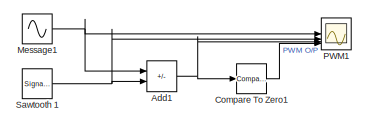
[diagram: root canvas - part 1/2, top left region]
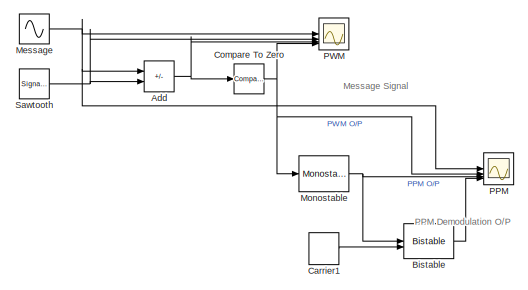
[diagram: root canvas - part 2/2, right side, full height]
MODEL slx_04621198579b
KIND model
CONFIG AbsTol = auto
CONFIG EnableMultiTasking = off
CONFIG FixedStep = auto
CONFIG MaxStep = auto
CONFIG MinStep = auto
CONFIG RelTol = 1e-3
CONFIG SampleTimeConstraint = Unconstrained
CONFIG SolverName = VariableStepAuto
CONFIG StartTime = 0.0
CONFIG StopTime = 10.0
BLOCK [Sum] Add
  IconShape = rectangular
  Inputs = +-
BLOCK [Sum] Add1
  IconShape = rectangular
  Inputs = +-
BLOCK [Reference] Bistable  REF=spsBistableLib/Bistable
  LibrarySourceBlock = sps_lib/Control/Bistable
  SourceBlock = spsBistableLib/Bistable
  SourceType = Bistable
BLOCK [DiscretePulseGenerator] Carrier1
  Period = 0.02
  PulseType = Time based
  PulseWidth = 50
BLOCK [Reference] Compare To Zero  REF=simulink/Logic and Bit
Operations/Compare
To Zero
  SourceBlock = simulink/Logic and Bit\nOperations/Compare\nTo Zero
  SourceType = Compare To Zero
BLOCK [Reference] Compare To Zero1  REF=simulink/Logic and Bit
Operations/Compare
To Zero
  SourceBlock = simulink/Logic and Bit\nOperations/Compare\nTo Zero
  SourceType = Compare To Zero
BLOCK [Sin] Message
  Frequency = 2*pi*1
  SampleTime = 1/1000
BLOCK [Sin] Message1
  Frequency = 2*pi*1
  SampleTime = 1/1000
BLOCK [Reference] Monostable  REF=spsMonostableLib/Monostable
  LibrarySourceBlock = sps_lib/Control/Monostable
  SourceBlock = spsMonostableLib/Monostable
  SourceType = Monostable
BLOCK [Scope] PPM
  Floating = off
  NumInputPorts = 4
  ScopeSpecificationString = Simulink.scopes.TimeScopeBlockCfg('CurrentConfiguration', extmgr.ConfigurationSet(extmgr.Configuration('Core','General UI',true,'FigureColor',[1 1 1]),extmgr.Configuration('Core','Source UI',true),extmgr.Configuration('Sources','WiredSimulink',true,'DataLoggingVariableName','ScopeData1'),extmgr.Configuration('Visuals','Time Domain',true,'SerializedDisplays',{struct('MinYLimReal','-1.25','MaxYLimRe...<+3987ch>
BLOCK [Scope] PWM
  Floating = off
  NumInputPorts = 4
  ScopeSpecificationString = Simulink.scopes.TimeScopeBlockCfg('CurrentConfiguration', extmgr.ConfigurationSet(extmgr.Configuration('Core','General UI',true,'FigureColor',[1 1 1]),extmgr.Configuration('Core','Source UI',true),extmgr.Configuration('Sources','WiredSimulink',true),extmgr.Configuration('Visuals','Time Domain',true,'SerializedDisplays',{struct('MinYLimReal','-1.25','MaxYLimReal','1.25','YLabelReal','','MinYLimMag'...<+4037ch>
BLOCK [Scope] PWM1
  Floating = off
  NumInputPorts = 4
  ScopeSpecificationString = Simulink.scopes.TimeScopeBlockCfg('CurrentConfiguration', extmgr.ConfigurationSet(extmgr.Configuration('Core','General UI',true,'FigureColor',[1 1 1]),extmgr.Configuration('Core','Source UI',true),extmgr.Configuration('Sources','WiredSimulink',true,'DataLoggingVariableName','ScopeData1'),extmgr.Configuration('Visuals','Time Domain',true,'SerializedDisplays',{struct('MinYLimReal','-1.25','MaxYLimRe...<+4076ch>
BLOCK [SignalGenerator] Sawtooth 
  Frequency = 10
  WaveForm = sawtooth
BLOCK [SignalGenerator] Sawtooth 1
  Frequency = 10
  WaveForm = sawtooth
ANNOTATION (root): Message Signal
ANNOTATION (root): PPM Demodulation O/P
NET Add1:1 -> Compare To Zero1:1, PWM1:3
NET Add:1 -> Compare To Zero:1, PWM:3
LINE Bistable:1 -> PPM:4
LINE Carrier1:1 -> Bistable:2
LINE Compare To Zero1:1 -> PWM1:4
NET Compare To Zero:1 -> Monostable:1, PPM:2, PWM:4
NET Message1:1 -> Add1:1, PWM1:1
NET Message:1 -> Add:1, PPM:1, PWM:1
NET Monostable:1 -> Bistable:1, PPM:3
NET Sawtooth 1:1 -> Add1:2, PWM1:2
NET Sawtooth :1 -> Add:2, PWM:2
note: NET lines group one-source signal fan-out (src -> all destinations, sorted); 1:1 wires keep LINE
